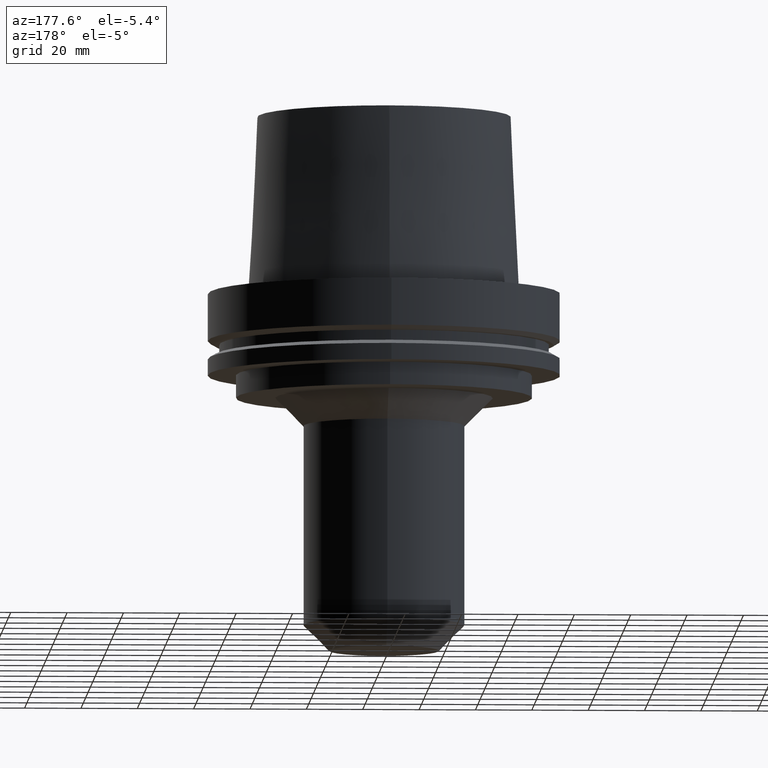
[diagram: clean part render]
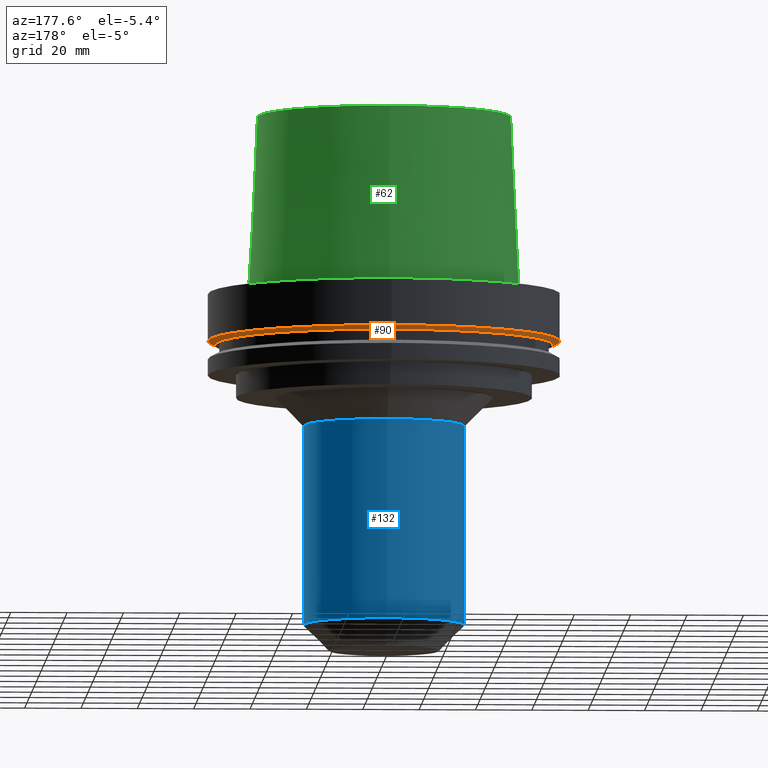
[diagram: same view with three faces highlighted in distinct colors, each labeled with its STEP entity id]
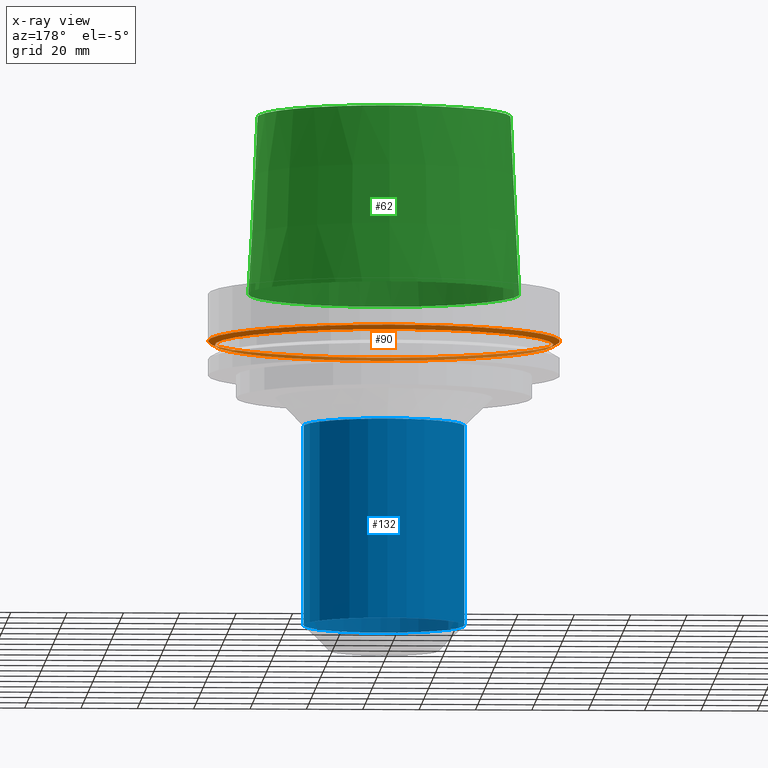
[diagram: x-ray of the same camera — body ghosted, the three highlighted faces saturated]
A machine part, auxiliary view with three faces highlighted in distinct colors.
The next image is the same camera in x-ray (body ghosted, the three faces saturated) — at least one of them is partly hidden behind the body in this view.
Their STEP definitions:

[orange] entity #90 — the highlighted conical surface has half-angle 60 deg.
#90=ADVANCED_FACE('Unnamed[1]',(#209,#210),#211,.T.);
#129=EDGE_CURVE('Unnamed[1]',#270,#270,#271,.T.);
#142=EDGE_CURVE('Unnamed[1]',#291,#291,#292,.T.);
#209=FACE_BOUND('',#360,.T.);
#210=FACE_BOUND('',#361,.T.);
#211=CONICAL_SURFACE('',#362,61.3112976320956,1.04719755119668);
#270=VERTEX_POINT('',#438);
#271=CIRCLE('',#439,60.1225952641912);
#291=VERTEX_POINT('',#464);
#292=CIRCLE('',#465,62.5);
#360=EDGE_LOOP('',(#522));
#361=EDGE_LOOP('',(#523));
#362=AXIS2_PLACEMENT_3D('',#524,#525,#526);
#438=CARTESIAN_POINT('',(1.10983616172729E-015,60.1225952641912,-18.1250000000001));
#439=AXIS2_PLACEMENT_3D('',#589,#590,#591);
#464=CARTESIAN_POINT('',(1.02578894188644E-015,62.5,-16.7524047358084));
#465=AXIS2_PLACEMENT_3D('',#613,#614,#615);
#522=ORIENTED_EDGE('',*,*,#129,.F.);
#523=ORIENTED_EDGE('',*,*,#142,.T.);
#524=CARTESIAN_POINT('',(1.06781255180686E-015,2.13562510361373E-015,-17.4387023679042));
#525=DIRECTION('',(-6.12323399573676E-017,-1.22464679914786E-016,1.0));
#526=DIRECTION('',(-1.23259516440761E-032,1.0,1.22464679914786E-016));
#589=CARTESIAN_POINT('',(1.10983616172729E-015,2.21967232345459E-015,-18.1250000000001));
#590=DIRECTION('',(6.12323399573677E-017,1.22464679914743E-016,-1.0));
#591=DIRECTION('',(-1.23259516440797E-032,1.0,1.22464679914743E-016));
#613=CARTESIAN_POINT('',(1.02578894188644E-015,2.05157788377287E-015,-16.7524047358084));
#614=DIRECTION('',(6.12323399573676E-017,1.22464679914723E-016,-1.0));
#615=DIRECTION('',(-1.23259516440783E-032,1.0,1.22464679914723E-016));

[blue] entity #132 — the highlighted cylindrical surface (bore or boss wall) has radius 28.6 mm, axis along (0, 0, -1).
#95=EDGE_CURVE('Unnamed[1]',#218,#218,#219,.T.);
#105=EDGE_CURVE('Unnamed[1]',#233,#233,#234,.T.);
#132=ADVANCED_FACE('Unnamed[1]',(#274,#275),#276,.T.);
#218=VERTEX_POINT('',#371);
#219=CIRCLE('',#372,28.6);
#233=VERTEX_POINT('',#391);
#234=CIRCLE('',#392,28.6);
#274=FACE_BOUND('',#443,.T.);
#275=FACE_BOUND('',#444,.T.);
#276=CYLINDRICAL_SURFACE('',#445,28.6);
#371=CARTESIAN_POINT('',(7.21929288097366E-015,28.6,-117.9));
#372=AXIS2_PLACEMENT_3D('',#533,#534,#535);
#391=CARTESIAN_POINT('',(2.87791997799646E-015,28.6,-47.0000000000029));
#392=AXIS2_PLACEMENT_3D('',#548,#549,#550);
#443=EDGE_LOOP('',(#593));
#444=EDGE_LOOP('',(#594));
#445=AXIS2_PLACEMENT_3D('',#595,#596,#597);
#533=CARTESIAN_POINT('',(7.21929288097366E-015,1.44385857619473E-014,-117.9));
#534=DIRECTION('',(6.12323399573677E-017,1.22464679914765E-016,-1.0));
#535=DIRECTION('',(-1.23259516440808E-032,1.0,1.22464679914765E-016));
#548=CARTESIAN_POINT('',(2.87791997799646E-015,5.75583995599291E-015,-47.0000000000029));
#549=DIRECTION('',(6.12323399573677E-017,1.22464679914765E-016,-1.0));
#550=DIRECTION('',(-1.23259516440808E-032,1.0,1.22464679914765E-016));
#593=ORIENTED_EDGE('',*,*,#95,.F.);
#594=ORIENTED_EDGE('',*,*,#105,.T.);
#595=CARTESIAN_POINT('',(5.04860642948506E-015,1.00972128589701E-014,-82.4500000000016));
#596=DIRECTION('',(6.12323399573677E-017,1.22464679914765E-016,-1.0));
#597=DIRECTION('',(-1.23259516440808E-032,1.0,1.22464679914765E-016));

[green] entity #62 — the highlighted conical surface has half-angle 2.868 deg.
#62=ADVANCED_FACE('Unnamed[1]',(#166,#167),#168,.T.);
#120=EDGE_CURVE('Unnamed[1]',#256,#256,#257,.T.);
#122=EDGE_CURVE('Unnamed[1]',#259,#259,#260,.T.);
#166=FACE_BOUND('',#308,.T.);
#167=FACE_BOUND('',#309,.T.);
#168=CONICAL_SURFACE('',#310,46.5560961923844,0.0500583457465964);
#256=VERTEX_POINT('',#420);
#257=CIRCLE('',#421,44.9779398797591);
#259=VERTEX_POINT('',#424);
#260=CIRCLE('',#425,48.1342525050097);
#308=EDGE_LOOP('',(#474));
#309=EDGE_LOOP('',(#475));
#310=AXIS2_PLACEMENT_3D('',#476,#477,#478);
#420=CARTESIAN_POINT('',(-3.85763741731416E-015,44.9779398797591,62.9999999999999));
#421=AXIS2_PLACEMENT_3D('',#574,#575,#576);
#424=CARTESIAN_POINT('',(3.88342032297484E-029,48.1342525050097,-6.38005254174039E-013));
#425=AXIS2_PLACEMENT_3D('',#577,#578,#579);
#474=ORIENTED_EDGE('',*,*,#122,.F.);
#475=ORIENTED_EDGE('',*,*,#120,.T.);
#476=CARTESIAN_POINT('',(-1.92881870865706E-015,-3.85763741731411E-015,31.4999999999996));
#477=DIRECTION('',(6.12323399573676E-017,1.22464679914766E-016,-1.0));
#478=DIRECTION('',(-1.23259516440801E-032,1.0,1.22464679914766E-016));
#574=CARTESIAN_POINT('',(-3.85763741731416E-015,-7.71527483462831E-015,62.9999999999999));
#575=DIRECTION('',(6.12323399573677E-017,1.22464679914719E-016,-1.0));
#576=DIRECTION('',(-1.23259516440771E-032,1.0,1.22464679914719E-016));
#577=CARTESIAN_POINT('',(3.91573749152705E-029,7.83147498305409E-029,-6.3948846218409E-013));
#578=DIRECTION('',(6.12323399573677E-017,1.22464679914742E-016,-1.0));
#579=DIRECTION('',(-1.23259516440755E-032,1.0,1.22464679914742E-016));